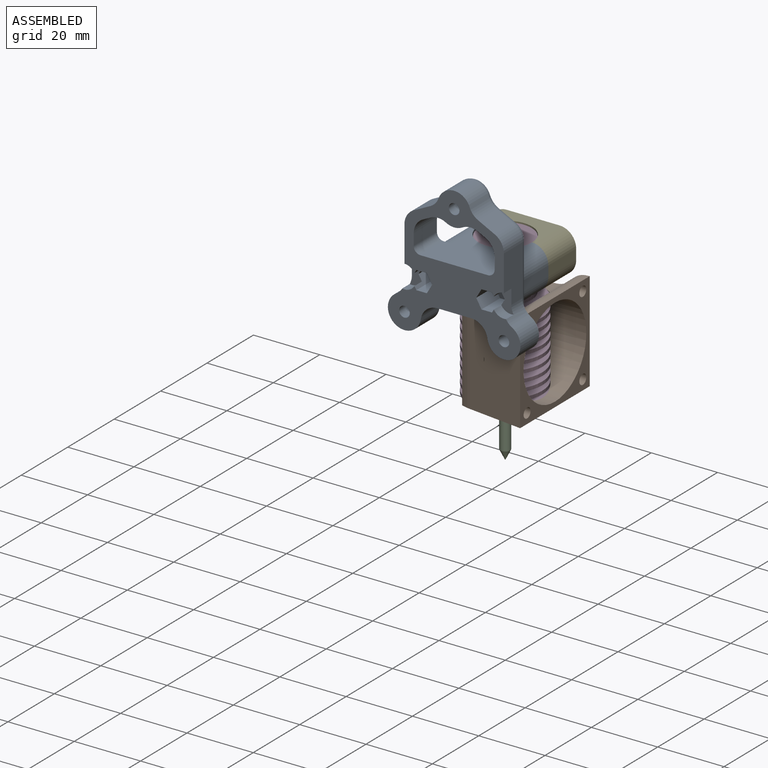
[diagram: assembled view]
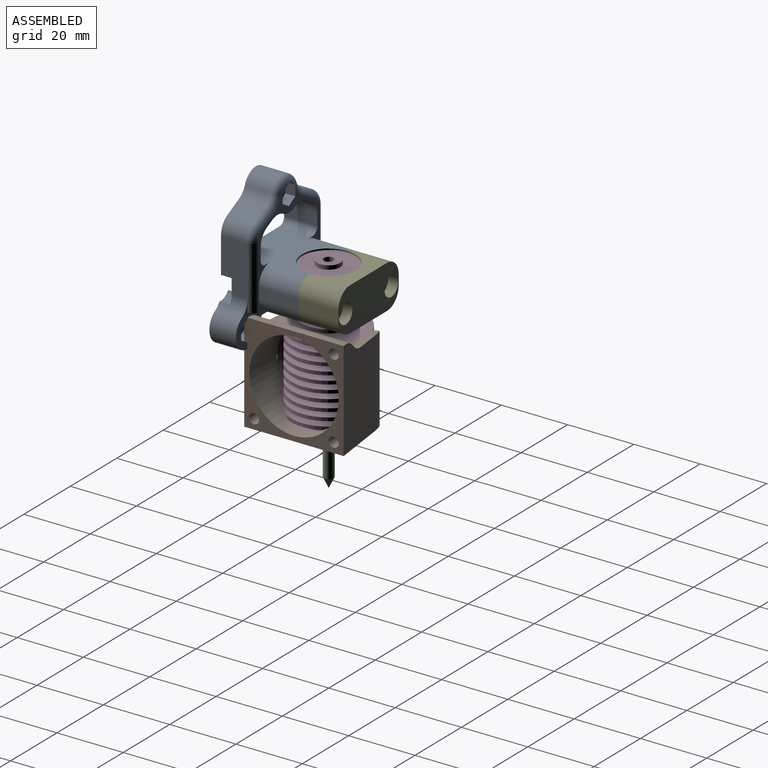
[diagram: assembled view, second angle]
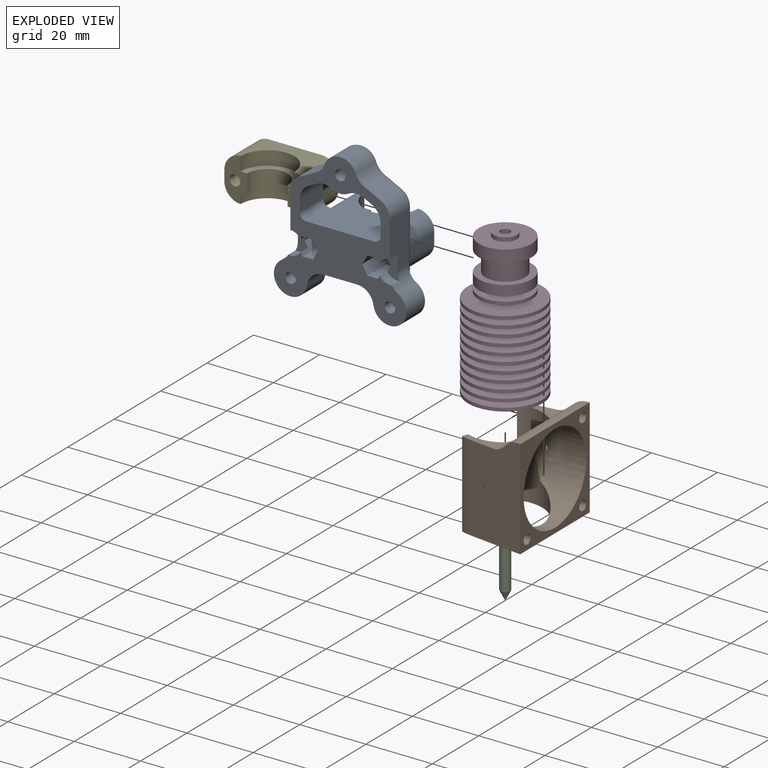
[diagram: exploded view]
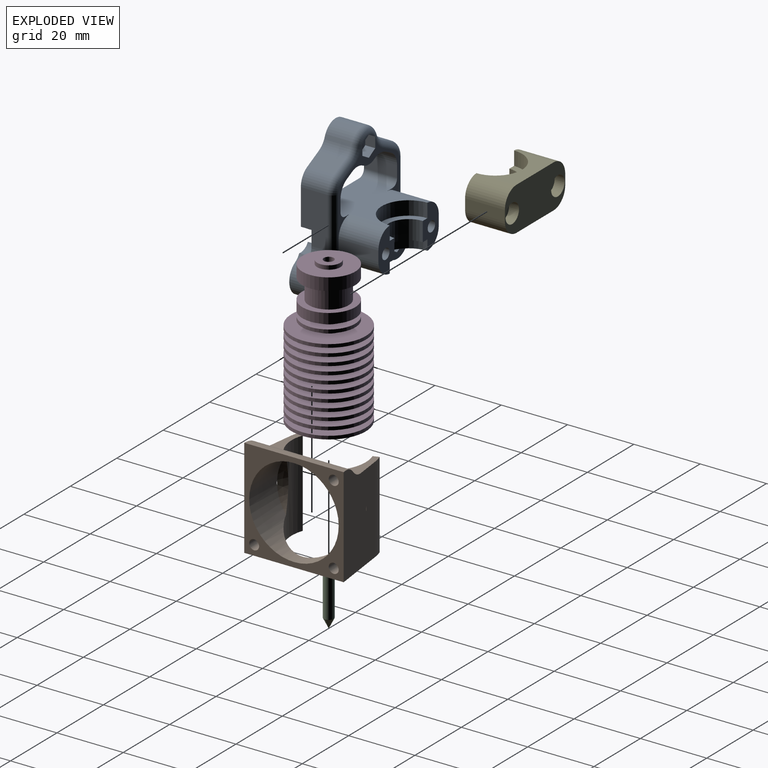
[diagram: exploded view, second angle]
ASSEMBLY  parts=5 mates=3
PART A: 106 faces, bbox 40x22x42.4 mm
  f0: plane 5x5mm, normal (0,1,0), area 4.5mm2, adj f7,f22,f50,f103
  f1: plane 26x21.5mm, normal (0,1,0), area 70.1mm2, adj f5,f6,f15,f16,f17,f18,f19,f43
  f2: plane 2.08x1.2mm, normal (0,1,0), area 0.4mm2, adj f69,f99
  f3: plane 2.08x1.2mm, normal (0,1,0), area 0.4mm2, adj f70,f99
  f4: cylinder r=5mm len=12mm, axis (0,1,0), area 94.2mm2, adj f9,f10,f22,f53,f76
  f5: cylinder r=5mm len=12mm, axis (0,1,0), area 94.2mm2, adj f1,f9,f18,f53,f80
  f6: cylinder r=5mm len=12mm, axis (0,1,0), area 94.2mm2, adj f1,f8,f18,f54,f80
  f7: cylinder r=5mm len=12mm, axis (0,1,0), area 94.2mm2, adj f0,f8,f22,f54,f76
  f8: plane 13.1x6.9mm, normal (0,1,0), area 57mm2, adj f6,f7,f54,f76,f77,f78,f79,f80
  f9: plane 13.1x6.9mm, normal (0,1,0), area 57mm2, adj f4,f5,f53,f76,f77,f78,f79,f80
  f10: plane 5x5mm, normal (0,1,0), area 4.5mm2, adj f4,f22,f49,f95
  f11: cylinder r=1.6mm len=7mm, axis (0,1,0), area 70.4mm2, adj f46,f75
  f12: plane 14.9x13.66mm, normal (0,1,0), area 61mm2, adj f21,f22,f50,f62,f63,f64,f65,f66
  f13: cylinder r=1.6mm len=5mm, axis (0,1,0), area 50.3mm2, adj f46,f61
  f14: plane 14.9x13.66mm, normal (0,1,0), area 61mm2, adj f22,f23,f49,f55,f56,f57,f58,f59
  f15: cylinder r=5mm len=10mm, axis (0,1,0), area 51.7mm2, adj f1,f46,f88,f91
  f16: plane 10x2.26mm, normal (-0.45,0,-0.89), area 25.2mm2, adj f1,f46,f88,f89
  f17: plane 10x3.48mm, normal (-1,0,0), area 34.8mm2, adj f1,f46,f89,f104
  f18: plane 20.73x20.4mm, normal (0,0,1), area 293.1mm2, adj f1,f5,f6,f46,f80,f104,f105
  f19: plane 10x3.48mm, normal (1,0,0), area 34.8mm2, adj f1,f46,f90,f105
  f20: plane 15.25x8mm, normal (-1,0,0), area 107.8mm2, adj f36,f46,f47,f93,f94,f103
  f21: cylinder r=5mm len=9.95mm, axis (0,1,0), area 161.9mm2, adj f12,f46,f83,f94
  f22: plane 23.06x20.73mm, normal (0,0,-1), area 216.8mm2, adj f0,f4,f7,f10,f12,f14,f46,f49
  f23: cylinder r=5mm len=9.95mm, axis (0,1,0), area 161.9mm2, adj f14,f46,f84,f85
  f24: cylinder r=3.5mm len=3.69mm, axis (0,1,0), area 13.8mm2, adj f25,f46,f48,f85
  f25: plane 8x2.75mm, normal (-0.87,0,0.5), area 18.9mm2, adj f24,f26,f30,f46,f48,f52
  f26: plane 8x3.18mm, normal (0,0,1), area 25.4mm2, adj f25,f27,f46,f52
  f27: plane 8x2.75mm, normal (0.87,0,0.5), area 25.4mm2, adj f26,f28,f46,f52
  f28: plane 8x2.75mm, normal (0.87,0,-0.5), area 25.4mm2, adj f27,f29,f46,f52
  f29: plane 8x3.18mm, normal (0,0,-1), area 25.4mm2, adj f28,f30,f46,f52
  f30: plane 8x2.75mm, normal (-0.87,0,-0.5), area 18.9mm2, adj f25,f29,f31,f46,f48,f52
  f31: cylinder r=3.5mm len=3.2mm, axis (0,1,0), area 11.7mm2, adj f30,f32,f46,f48
  f32: plane 15.25x8mm, normal (1,0,0), area 107.8mm2, adj f31,f46,f48,f85,f86,f95
  f33: plane 8x5.06mm, normal (0.45,0,0.89), area 45.3mm2, adj f46,f86,f87,f97
  f34: cylinder r=5mm len=9.41mm, axis (0,1,0), area 98mm2, adj f46,f87,f92,f99
  f35: plane 8x5.06mm, normal (-0.45,0,0.89), area 45.3mm2, adj f46,f92,f93,f101
  f36: cylinder r=3.5mm len=3.2mm, axis (0,1,0), area 11.7mm2, adj f20,f37,f46,f47
  f37: plane 8x2.75mm, normal (0.87,0,-0.5), area 18.9mm2, adj f36,f38,f42,f46,f47,f51
  f38: plane 8x3.18mm, normal (0,0,-1), area 25.4mm2, adj f37,f39,f46,f51
  f39: plane 8x2.75mm, normal (-0.87,0,-0.5), area 25.4mm2, adj f38,f40,f46,f51
  f40: plane 8x2.75mm, normal (-0.87,0,0.5), area 25.4mm2, adj f39,f41,f46,f51
  f41: plane 8x3.18mm, normal (0,0,1), area 25.4mm2, adj f40,f42,f46,f51
  f42: plane 8x2.75mm, normal (0.87,0,0.5), area 18.9mm2, adj f37,f41,f44,f46,f47,f51
  f43: plane 10x2.26mm, normal (0.45,0,-0.89), area 25.2mm2, adj f1,f46,f90,f91
  f44: cylinder r=3.5mm len=3.69mm, axis (0,1,0), area 13.8mm2, adj f42,f46,f47,f94
  f45: cylinder r=1.6mm len=5mm, axis (0,1,0), area 50.3mm2, adj f46,f68
  f46: plane 42x40mm, normal (0,-1,0), area 643.8mm2, adj f11,f13,f15,f16,f17,f18,f19,f20
  f47: plane 7x3.69mm, normal (0,-1,0), area 16.9mm2, adj f20,f36,f37,f42,f44,f94
  f48: plane 7x3.69mm, normal (0,-1,0), area 16.9mm2, adj f24,f25,f30,f31,f32,f85
  f49: cylinder r=5mm len=3.47mm, axis (0,1,0), area 6.8mm2, adj f10,f14,f22,f95
  f50: cylinder r=5mm len=3.47mm, axis (0,1,0), area 6.8mm2, adj f0,f12,f22,f103
  f51: plane 6.35x5.5mm, normal (0,-1,0), area 18.2mm2, adj f37,f38,f39,f40,f41,f42,f82
  f52: plane 6.35x5.5mm, normal (0,-1,0), area 18.2mm2, adj f25,f26,f27,f28,f29,f30,f81
  f53: plane 12x3.1mm, normal (1,0,0), area 37.2mm2, adj f4,f5,f9,f95
  f54: plane 12x3.1mm, normal (-1,0,0), area 37.2mm2, adj f6,f7,f8,f103
  f55: plane 3x2.75mm, normal (0.5,0,-0.87), area 9.5mm2, adj f14,f56,f60,f61
  f56: plane 3x2.75mm, normal (-0.5,0,-0.87), area 9.5mm2, adj f14,f55,f57,f61
  f57: plane 3.18x3mm, normal (-1,0,0), area 9.5mm2, adj f14,f56,f58,f61
  f58: plane 3x2.75mm, normal (-0.5,0,0.87), area 9.5mm2, adj f14,f57,f59,f61
  f59: plane 3x2.75mm, normal (0.5,0,0.87), area 9.5mm2, adj f14,f58,f60,f61
  f60: plane 3.18x3mm, normal (1,0,0), area 9.5mm2, adj f14,f55,f59,f61
  f61: plane 6.35x5.5mm, normal (0,1,0), area 18.2mm2, adj f13,f55,f56,f57,f58,f59,f60
  f62: plane 3x2.75mm, normal (0.5,0,-0.87), area 9.5mm2, adj f12,f63,f67,f68
  f63: plane 3x2.75mm, normal (-0.5,0,-0.87), area 9.5mm2, adj f12,f62,f64,f68
  f64: plane 3.18x3mm, normal (-1,0,0), area 9.5mm2, adj f12,f63,f65,f68
  f65: plane 3x2.75mm, normal (-0.5,0,0.87), area 9.5mm2, adj f12,f64,f66,f68
  f66: plane 3x2.75mm, normal (0.5,0,0.87), area 9.5mm2, adj f12,f65,f67,f68
  f67: plane 3.18x3mm, normal (1,0,0), area 9.5mm2, adj f12,f62,f66,f68
  f68: plane 6.35x5.5mm, normal (0,1,0), area 18.2mm2, adj f45,f62,f63,f64,f65,f66,f67
  f69: plane 3.01x2.76mm, normal (0.5,0,-0.87), area 9.5mm2, adj f2,f70,f74,f75,f99
  f70: plane 3.01x2.76mm, normal (-0.5,0,-0.87), area 9.5mm2, adj f3,f69,f71,f75,f99
  f71: plane 3.19x3.01mm, normal (-1,0,0), area 9.5mm2, adj f1,f70,f72,f75,f99
  f72: plane 3x2.75mm, normal (-0.5,0,0.87), area 9.5mm2, adj f1,f71,f73,f75
  f73: plane 3x2.75mm, normal (0.5,0,0.87), area 9.5mm2, adj f1,f72,f74,f75
  f74: plane 3.19x3.01mm, normal (1,0,0), area 9.5mm2, adj f1,f69,f73,f75,f99
  f75: plane 6.35x5.5mm, normal (0,1,0), area 18.2mm2, adj f11,f69,f70,f71,f72,f73,f74
  f76: cylinder r=8.1mm len=16.2mm, axis (0,0,-1), area 78.9mm2, adj f4,f7,f8,f9,f22,f77
  f77: plane 16.2x8.1mm, normal (0,0,-1), area 44.6mm2, adj f8,f9,f76,f78
  f78: cylinder r=6.1mm len=12.2mm, axis (0,0,-1), area 111.1mm2, adj f8,f9,f77,f79
  f79: plane 16.2x8.1mm, normal (0,0,1), area 44.6mm2, adj f8,f9,f78,f80
  f80: cylinder r=8.1mm len=16.2mm, axis (0,0,-1), area 106.9mm2, adj f5,f6,f8,f9,f18,f79
  f81: cylinder r=1.6mm len=14mm, axis (0,1,0), area 140.7mm2, adj f9,f52
  f82: cylinder r=1.6mm len=14mm, axis (0,1,0), area 140.7mm2, adj f8,f51
  f83: cylinder r=5mm len=8mm, axis (0,1,0), area 57.2mm2, adj f12,f21,f22,f46
  f84: cylinder r=5mm len=8mm, axis (0,1,0), area 57.2mm2, adj f14,f22,f23,f46
  f85: cylinder r=5mm len=8mm, axis (0,1,0), area 33.5mm2, adj f14,f23,f24,f32,f46,f48
  f86: cylinder r=5mm len=8mm, axis (0,1,0), area 44.3mm2, adj f32,f33,f46,f96
  f87: cylinder r=5mm len=8mm, axis (0,1,0), area 30.5mm2, adj f33,f34,f46,f98
  f88: cylinder r=5mm len=10mm, axis (0,1,0), area 49mm2, adj f1,f15,f16,f46
  f89: cylinder r=5mm len=10mm, axis (0,-1,0), area 55.4mm2, adj f1,f16,f17,f46
  f90: cylinder r=5mm len=10mm, axis (0,-1,0), area 55.4mm2, adj f1,f19,f43,f46
  f91: cylinder r=5mm len=10mm, axis (0,1,0), area 49mm2, adj f1,f15,f43,f46
  f92: cylinder r=5mm len=8mm, axis (0,1,0), area 30.5mm2, adj f34,f35,f46,f100
  f93: cylinder r=5mm len=8mm, axis (0,1,0), area 44.3mm2, adj f20,f35,f46,f102
  f94: cylinder r=5mm len=8mm, axis (0,1,0), area 33.5mm2, adj f12,f20,f21,f44,f46,f47
  f95: cylinder r=2mm len=19.33mm, axis (0,0,1), area 59.7mm2, adj f1,f10,f14,f32,f49,f53,f96
  f96: torus R=3mm, axis (0,-1,0), area 14.9mm2, adj f1,f86,f95,f97
  f97: cylinder r=2mm len=5.96mm, axis (-0.89,0,0.45), area 17.8mm2, adj f1,f33,f96,f98
  f98: torus R=7mm, axis (0,-1,0), area 13.7mm2, adj f1,f87,f97,f99
  f99: torus R=3mm, axis (0,-1,0), area 32.7mm2, adj f1,f2,f3,f34,f69,f70,f71,f74
  f100: torus R=7mm, axis (0,-1,0), area 13.7mm2, adj f1,f92,f99,f101
  f101: cylinder r=2mm len=5.96mm, axis (-0.89,0,-0.45), area 17.8mm2, adj f1,f35,f100,f102
  f102: torus R=3mm, axis (0,-1,0), area 14.9mm2, adj f1,f93,f101,f103
  f103: cylinder r=2mm len=19.33mm, axis (0,0,-1), area 59.7mm2, adj f0,f1,f12,f20,f50,f54,f102
  f104: cylinder r=2mm len=10mm, axis (0,1,0), area 31.4mm2, adj f1,f17,f18,f46
  f105: cylinder r=2mm len=10mm, axis (0,-1,0), area 31.4mm2, adj f1,f18,f19,f46
PART B: 26 faces, bbox 19.7x30.3x30.3 mm
  f0: plane 30.27x16.9mm, normal (-0.13,0,0.99), area 455.9mm2, adj f5,f6,f7,f11,f12,f13,f14,f16
  f1: cylinder r=11.2mm len=29.09mm, axis (0,1,0), area 463.2mm2, adj f3,f4,f5,f8,f9,f11,f13,f14
  f2: plane 30.07x16.7mm, normal (-0.13,0,-0.99), area 455.9mm2, adj f3,f4,f6,f10,f11,f12,f14,f15
  f3: plane 10.75x1.19mm, normal (-0.71,-0.71,0), area 14.2mm2, adj f1,f2,f14,f15
  f4: plane 10.38x4.35mm, normal (0,-1,0), area 24.4mm2, adj f1,f2,f9,f10,f15
  f5: plane 10.38x4.35mm, normal (0,-1,0), area 24.4mm2, adj f0,f1,f7,f8,f16
  f6: plane 30x30mm, normal (1,0,0), area 306.2mm2, adj f0,f2,f11,f12,f17,f19,f21,f23
  f7: cylinder r=13mm len=26mm, axis (0,1,0), area 75.5mm2, adj f0,f5,f8,f11
  f8: plane 26x1.69mm, normal (-0.94,0,-0.34), area 46.8mm2, adj f1,f5,f7,f11
  f9: plane 26x1.69mm, normal (-0.94,0,0.34), area 46.8mm2, adj f1,f4,f10,f11
  f10: cylinder r=13mm len=26mm, axis (0,1,0), area 75.5mm2, adj f2,f4,f9,f11
  f11: plane 30x19.45mm, normal (0,1,0), area 239.8mm2, adj f0,f1,f2,f6,f7,f8,f9,f10
  f12: plane 30x0.93mm, normal (0,-1,0), area 27.8mm2, adj f0,f2,f6,f14
  f13: plane 10.75x1.19mm, normal (-0.71,-0.71,0), area 14.2mm2, adj f0,f1,f14,f16
  f14: cylinder r=5mm len=29.77mm, axis (0,0,1), area 110.6mm2, adj f0,f1,f2,f3,f12,f13
  f15: cylinder r=5mm len=8.31mm, axis (0,0,1), area 24.9mm2, adj f1,f2,f3,f4
  f16: cylinder r=5mm len=8.31mm, axis (0,0,1), area 24.9mm2, adj f0,f1,f5,f13
  f17: cylinder r=1.5mm len=3mm, axis (1,0,0), area 28.3mm2, adj f6,f18
  f18: cone r=0mm half-angle=59deg, axis (1,0,0), area 8.2mm2, adj f17
  f19: cylinder r=1.5mm len=3mm, axis (1,0,0), area 28.3mm2, adj f6,f20
  f20: cone r=0mm half-angle=59deg, axis (1,0,0), area 8.2mm2, adj f19
  f21: cylinder r=1.5mm len=3mm, axis (1,0,0), area 28.3mm2, adj f6,f22
  f22: cone r=0mm half-angle=59deg, axis (1,0,0), area 8.2mm2, adj f21
  f23: cylinder r=13.5mm len=27mm, axis (1,0,0), area 731mm2, adj f0,f1,f2,f6,f24,f25
  f24: cone r=0mm half-angle=59deg, axis (1,0,0), area 31mm2, adj f0,f1,f23
  f25: cone r=0mm half-angle=59deg, axis (1,0,0), area 31mm2, adj f1,f2,f23
PART C: 3 faces, bbox 3x3x18.4 mm
  f0: cylinder r=1.5mm len=15.4mm, axis (0,0,-1), area 145.1mm2, adj f1,f2
  f1: cone r=1.5mm half-angle=26.6deg, axis (0,0,1), area 15.8mm2, adj f0
  f2: plane 3x3mm, normal (0,0,1), area 7.1mm2, adj f0
PART D: 58 faces, bbox 22.4x22.4x43.9 mm
  f0: cylinder r=8mm len=16mm, axis (0,0,1), area 186mm2, adj f1,f56
  f1: plane 16x16mm, normal (0,0,-1), area 88mm2, adj f0,f2
  f2: cylinder r=6mm len=12mm, axis (0,0,1), area 226.2mm2, adj f1,f3
  f3: plane 16x16mm, normal (0,0,1), area 88mm2, adj f2,f4
  f4: cylinder r=8mm len=16mm, axis (0,0,1), area 150.8mm2, adj f3,f5
  f5: plane 16x16mm, normal (0,0,-1), area 122.5mm2, adj f4,f6
  f6: cylinder r=5mm len=10mm, axis (0,0,1), area 47.1mm2, adj f5,f7
  f7: plane 16x16mm, normal (0,0,1), area 122.5mm2, adj f6,f8
  f8: cylinder r=8mm len=16mm, axis (0,0,1), area 50.3mm2, adj f7,f9
  f9: plane 16x16mm, normal (0,0,-1), area 122.5mm2, adj f8,f10
  f10: cylinder r=5mm len=10mm, axis (0,0,1), area 47.1mm2, adj f9,f11
  f11: plane 22.4x22.4mm, normal (0,0,1), area 315.5mm2, adj f10,f12
  f12: cylinder r=11.2mm len=22.4mm, axis (0,0,1), area 70.4mm2, adj f11,f13
  f13: plane 22.4x22.4mm, normal (0,0,-1), area 315.5mm2, adj f12,f14
  f14: cylinder r=5mm len=10mm, axis (0,0,1), area 47.1mm2, adj f13,f15
  f15: plane 22.4x22.4mm, normal (0,0,1), area 315.5mm2, adj f14,f16
  f16: cylinder r=11.2mm len=22.4mm, axis (0,0,1), area 70.4mm2, adj f15,f17
  f17: plane 22.4x22.4mm, normal (0,0,-1), area 315.5mm2, adj f16,f18
  f18: cylinder r=5mm len=10mm, axis (0,0,1), area 47.1mm2, adj f17,f19
  f19: plane 22.4x22.4mm, normal (0,0,1), area 315.5mm2, adj f18,f20
  f20: cylinder r=11.2mm len=22.4mm, axis (0,0,1), area 70.4mm2, adj f19,f21
  f21: plane 22.4x22.4mm, normal (0,0,-1), area 315.5mm2, adj f20,f22
  f22: cylinder r=5mm len=10mm, axis (0,0,1), area 47.1mm2, adj f21,f23
  f23: plane 22.4x22.4mm, normal (0,0,1), area 315.5mm2, adj f22,f24
  f24: cylinder r=11.2mm len=22.4mm, axis (0,0,1), area 70.4mm2, adj f23,f25
  f25: plane 22.4x22.4mm, normal (0,0,-1), area 315.5mm2, adj f24,f26
  f26: cylinder r=5mm len=10mm, axis (0,0,1), area 47.1mm2, adj f25,f27
  f27: plane 22.4x22.4mm, normal (0,0,1), area 315.5mm2, adj f26,f28
  f28: cylinder r=11.2mm len=22.4mm, axis (0,0,1), area 70.4mm2, adj f27,f29
  f29: plane 22.4x22.4mm, normal (0,0,-1), area 315.5mm2, adj f28,f30
  f30: cylinder r=5mm len=10mm, axis (0,0,1), area 47.1mm2, adj f29,f31
  f31: plane 22.4x22.4mm, normal (0,0,1), area 315.5mm2, adj f30,f32
  f32: cylinder r=11.2mm len=22.4mm, axis (0,0,1), area 70.4mm2, adj f31,f33
  f33: plane 22.4x22.4mm, normal (0,0,-1), area 315.5mm2, adj f32,f34
  f34: cylinder r=5mm len=10mm, axis (0,0,1), area 47.1mm2, adj f33,f35
  f35: plane 22.4x22.4mm, normal (0,0,1), area 315.5mm2, adj f34,f36
  f36: cylinder r=11.2mm len=22.4mm, axis (0,0,1), area 70.4mm2, adj f35,f37
  f37: plane 22.4x22.4mm, normal (0,0,-1), area 315.5mm2, adj f36,f38
  f38: cylinder r=5mm len=10mm, axis (0,0,1), area 47.1mm2, adj f37,f39
  f39: plane 22.4x22.4mm, normal (0,0,1), area 315.5mm2, adj f38,f40
  f40: cylinder r=11.2mm len=22.4mm, axis (0,0,1), area 70.4mm2, adj f39,f41
  f41: plane 22.4x22.4mm, normal (0,0,-1), area 315.5mm2, adj f40,f42
  f42: cylinder r=5mm len=10mm, axis (0,0,1), area 47.1mm2, adj f41,f43
  f43: plane 22.4x22.4mm, normal (0,0,1), area 315.5mm2, adj f42,f44
  f44: cylinder r=11.2mm len=22.4mm, axis (0,0,1), area 70.4mm2, adj f43,f45
  f45: plane 22.4x22.4mm, normal (0,0,-1), area 315.5mm2, adj f44,f46
  f46: cylinder r=5mm len=10mm, axis (0,0,1), area 47.1mm2, adj f45,f47
  f47: plane 22.4x22.4mm, normal (0,0,1), area 315.5mm2, adj f46,f48
  f48: cylinder r=11.2mm len=22.4mm, axis (0,0,1), area 70.4mm2, adj f47,f49
  f49: plane 22.4x22.4mm, normal (0,0,-1), area 315.5mm2, adj f48,f50
  f50: cylinder r=5mm len=10mm, axis (0,0,1), area 47.1mm2, adj f49,f51
  f51: plane 22.4x22.4mm, normal (0,0,1), area 315.5mm2, adj f50,f52
  f52: cylinder r=11.2mm len=22.4mm, axis (0,0,1), area 70.4mm2, adj f51,f53
  f53: plane 22.4x22.4mm, normal (0,0,-1), area 387mm2, adj f52,f57
  f54: plane 7x7mm, normal (0,0,1), area 31.4mm2, adj f55,f57
  f55: cylinder r=3.5mm len=7mm, axis (0,0,1), area 26.4mm2, adj f54,f56
  f56: plane 16x16mm, normal (0,0,1), area 162.6mm2, adj f0,f55
  f57: cylinder r=1.5mm len=43.9mm, axis (0,0,1), area 413.7mm2, adj f53,f54
PART E: 22 faces, bbox 26x12x13.1 mm
  f0: cylinder r=5mm len=12mm, axis (0,-1,0), area 94.2mm2, adj f5,f6,f7,f10,f11
  f1: cylinder r=5mm len=12mm, axis (0,-1,0), area 94.2mm2, adj f5,f7,f8,f10,f15
  f2: cylinder r=5mm len=12mm, axis (0,-1,0), area 94.2mm2, adj f4,f8,f9,f10,f15
  f3: cylinder r=5mm len=12mm, axis (0,-1,0), area 94.2mm2, adj f4,f6,f9,f10,f11
  f4: plane 13.1x6.9mm, normal (0,-1,0), area 57mm2, adj f2,f3,f9,f11,f12,f13,f14,f15
  f5: plane 13.1x6.9mm, normal (0,-1,0), area 57mm2, adj f0,f1,f7,f11,f12,f13,f14,f15
  f6: plane 16x10.73mm, normal (0,0,-1), area 89.1mm2, adj f0,f3,f10,f11
  f7: plane 12x3.1mm, normal (1,0,0), area 37.2mm2, adj f0,f1,f5,f10
  f8: plane 16x10.73mm, normal (0,0,1), area 89.1mm2, adj f1,f2,f10,f15
  f9: plane 12x3.1mm, normal (-1,0,0), area 37.2mm2, adj f2,f3,f4,f10
  f10: plane 26x13.1mm, normal (0,1,0), area 266.3mm2, adj f0,f1,f2,f3,f6,f7,f8,f9
  f11: cylinder r=8.1mm len=16.2mm, axis (0,0,-1), area 78.9mm2, adj f0,f3,f4,f5,f6,f12
  f12: plane 16.2x8.1mm, normal (0,0,-1), area 44.6mm2, adj f4,f5,f11,f13
  f13: cylinder r=6.1mm len=12.2mm, axis (0,0,-1), area 111.1mm2, adj f4,f5,f12,f14
  f14: plane 16.2x8.1mm, normal (0,0,1), area 44.6mm2, adj f4,f5,f13,f15
  f15: cylinder r=8.1mm len=16.2mm, axis (0,0,-1), area 106.9mm2, adj f1,f2,f4,f5,f8,f14
  f16: cylinder r=1.6mm len=9mm, axis (0,1,0), area 90.5mm2, adj f5,f17
  f17: plane 5.8x5.8mm, normal (0,1,0), area 18.4mm2, adj f16,f18
  f18: cylinder r=2.9mm len=5.8mm, axis (0,1,0), area 54.7mm2, adj f10,f17
  f19: cylinder r=1.6mm len=9mm, axis (0,1,0), area 90.5mm2, adj f4,f20
  f20: plane 5.8x5.8mm, normal (0,1,0), area 18.4mm2, adj f19,f21
  f21: cylinder r=2.9mm len=5.8mm, axis (0,1,0), area 54.7mm2, adj f10,f20
PLACE A rot(axis=(0,-1,0),0deg) t=(0,0,19.4)mm fixed
PLACE B rot(axis=(-1,0,0),90deg) t=(0,-36.93,-39)mm
PLACE C t=(0,0,-57.4)mm
PLACE D t=(0,0,4.9)mm
PLACE E rot(axis=(0,-1,0),0deg) t=(0,0,19.4)mm
MATE fastened E.f19 <-> A.f82  axis (0,-1,0) through (-9.82,0,-3)mm
MATE fastened C.f0 <-> D.f0  axis (0,0,1) through (0,0,-39)mm
MATE fastened B.f1 <-> D.f0  axis (0,0,-1) through (0,0,-39)mm
